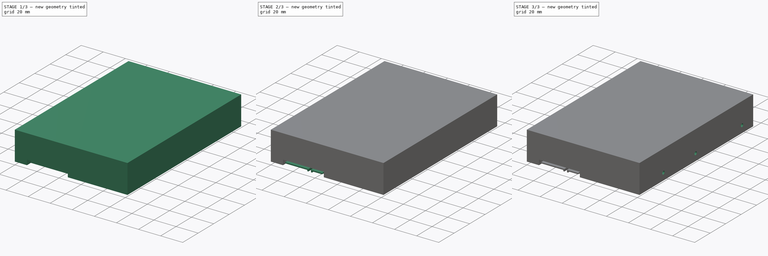
[diagram: build sequence overview — one tinted view per stage of 3, left to right]
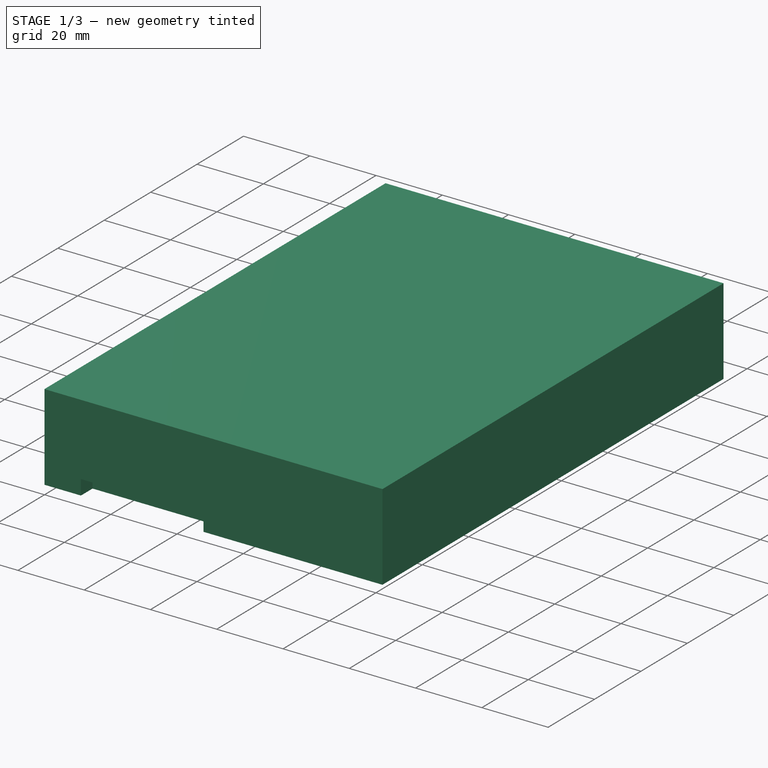
[diagram: stage 1 of 3 — iso view after this stage's code; geometry added in this stage tinted green]
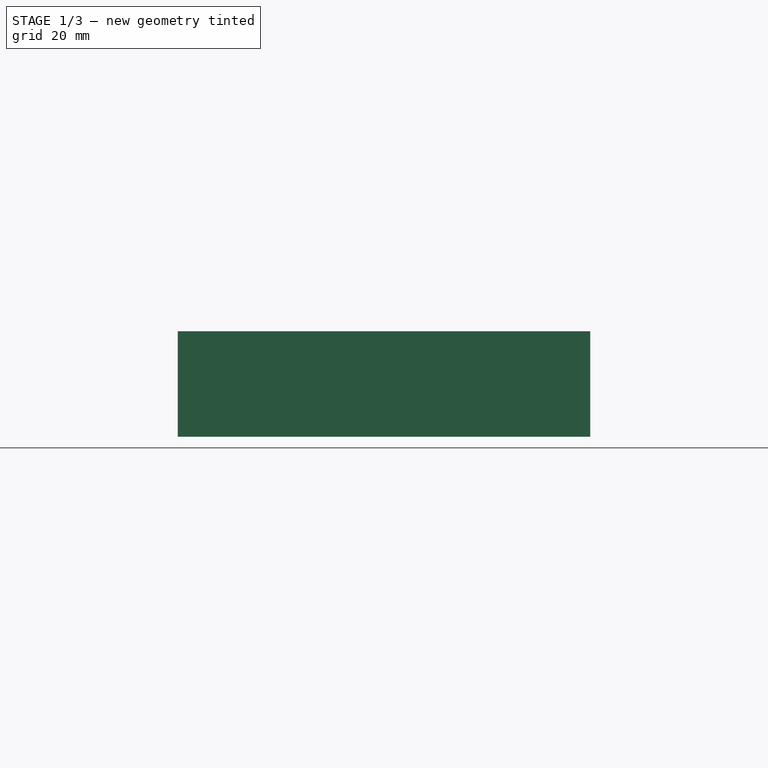
[diagram: stage 1 of 3 — front view after this stage's code; geometry added in this stage tinted green]
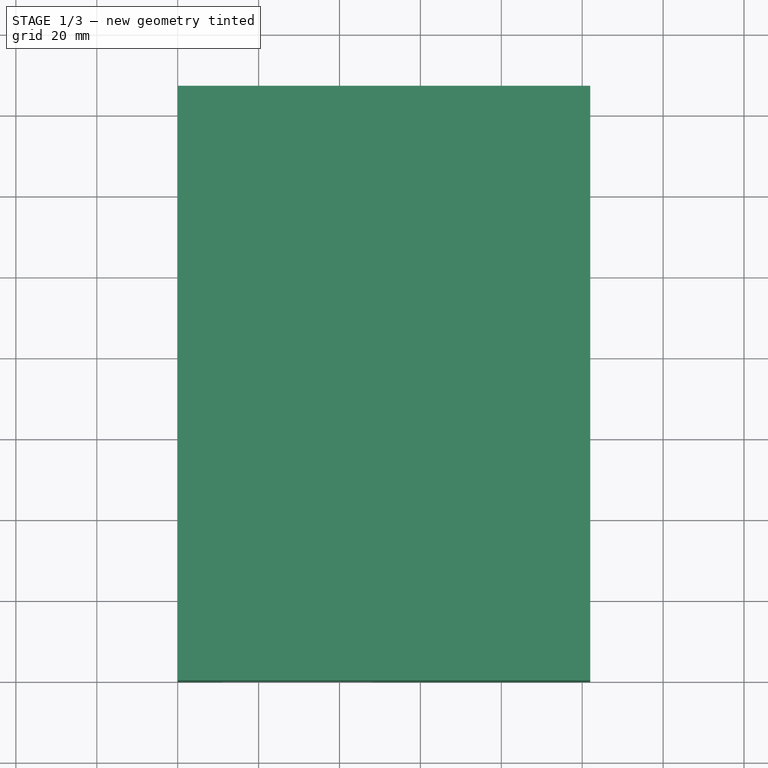
[diagram: stage 1 of 3 — top view after this stage's code; geometry added in this stage tinted green]
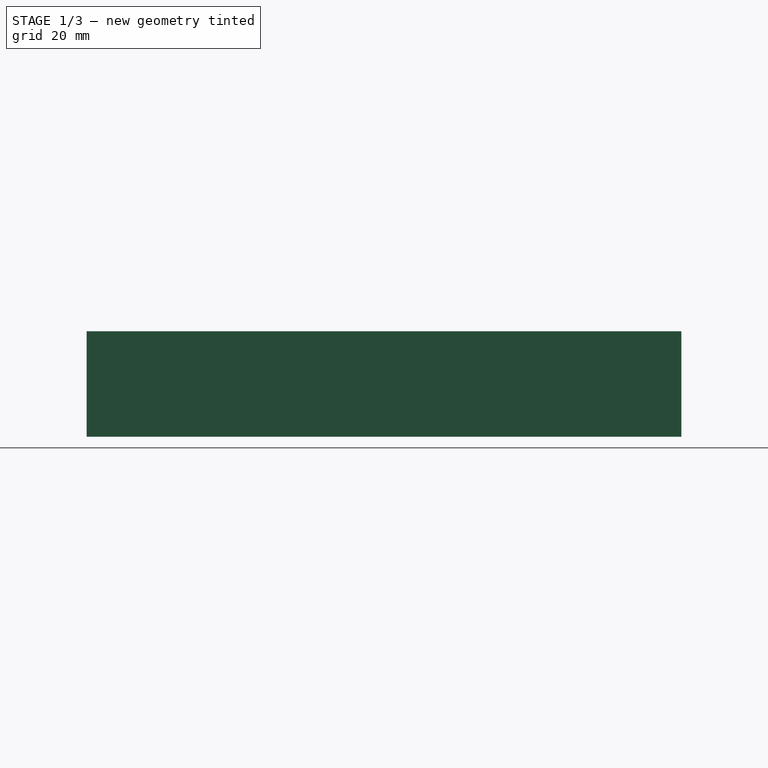
[diagram: stage 1 of 3 — right view after this stage's code; geometry added in this stage tinted green]
FCSTD DOCUMENT  (FreeCAD 0.19R22808 (Git))
Label: 3-5inch-Disk-Drive-SATA
License: All rights reserved
LicenseURL: http://en.wikipedia.org/wiki/All_rights_reserved
objects: Sketcher::SketchObject×5, PartDesign::Pocket×3, PartDesign::Pad×2, PartDesign::Body×1
note: 16 computed .brp shape members not serialized (recipe doc carries the construction recipe); baked Part::Feature solids carry a one-line shape summary decoded from their .brp

FEATURE [Sketcher::SketchObject] Sketch  label="MainSketch"
  MapMode = 5
  Support = -> [XY_Plane]
  sketch-geometry (4):
    g0: LineSegment StartX=0 StartY=147 StartZ=0 EndX=102 EndY=147 EndZ=0
    g1: LineSegment StartX=102 StartY=147 StartZ=0 EndX=102 EndY=0 EndZ=0
    g2: LineSegment StartX=102 StartY=0 StartZ=0 EndX=0 EndY=0 EndZ=0
    g3: LineSegment StartX=0 StartY=0 StartZ=0 EndX=0 EndY=147 EndZ=0
  constraints (11):
    c: Coincident(g0,g1)
    c: Coincident(g1,g2)
    c: Coincident(g2,g3)
    c: Coincident(g3,g0)
    c: Horizontal(g0)
    c: Horizontal(g2)
    c: Vertical(g1)
    c: Vertical(g3)
    c: DistanceX(g0,g0) = 102
    c: DistanceY(g3,g3) = 147
    c: Coincident(g2,g-1)
FEATURE [PartDesign::Pad] Pad  label="Main"
  Direction = (1,1,1)
  Length = 26.1
  Length2 = 100
  Profile = -> Sketch
  Type = 0
FEATURE [Sketcher::SketchObject] Sketch001  label="ConnectorsPocketSketch"
  MapMode = 5
  Placement = pos=(0,0,0) rot=(1,0,0;1.5708rad)
  Support = -> [XZ_Plane]
  sketch-geometry (4):
    g0: LineSegment StartX=11 StartY=4.5 StartZ=0 EndX=48 EndY=4.5 EndZ=0
    g1: LineSegment StartX=48 StartY=4.5 StartZ=0 EndX=48 EndY=0 EndZ=0
    g2: LineSegment StartX=48 StartY=0 StartZ=0 EndX=11 EndY=0 EndZ=0
    g3: LineSegment StartX=11 StartY=0 StartZ=0 EndX=11 EndY=4.5 EndZ=0
  constraints (12):
    c: Coincident(g0,g1)
    c: Coincident(g1,g2)
    c: Coincident(g2,g3)
    c: Coincident(g3,g0)
    c: Horizontal(g0)
    c: Horizontal(g2)
    c: Vertical(g1)
    c: Vertical(g3)
    c: DistanceY(g3,g3) = 4.5
    c: DistanceX(g0,g0) = 37
    c: PointOnObject(g2,g-1)
    c: DistanceX(g-1,g2) = 11
FEATURE [PartDesign::Pocket] Pocket  label="ConnectorsPocket"
  BaseFeature = -> Pad
  Length = 5
  Length2 = 100
  Profile = -> Sketch001
  Type = 0
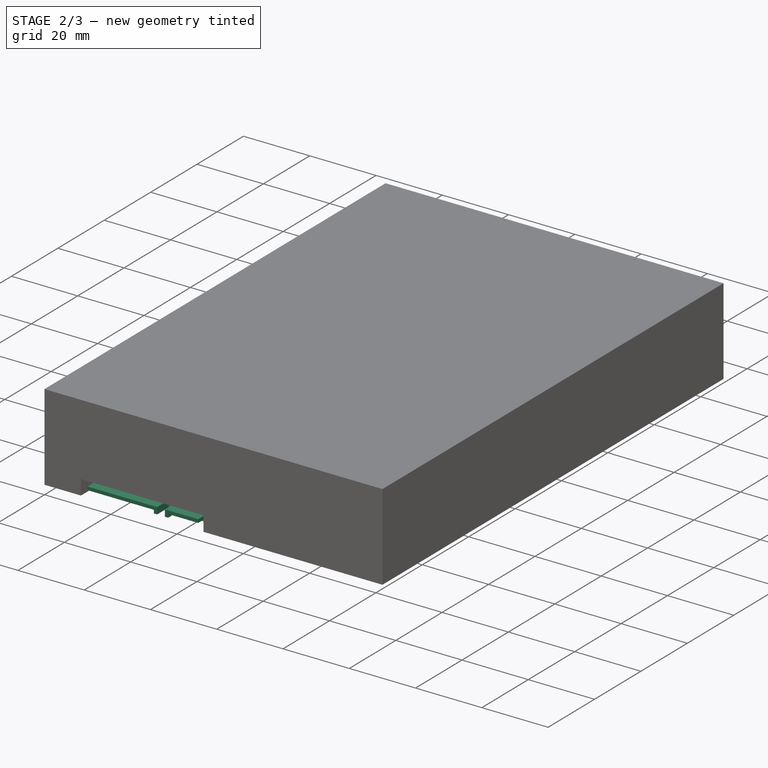
[diagram: stage 2 of 3 — iso view after this stage's code; geometry added in this stage tinted green]
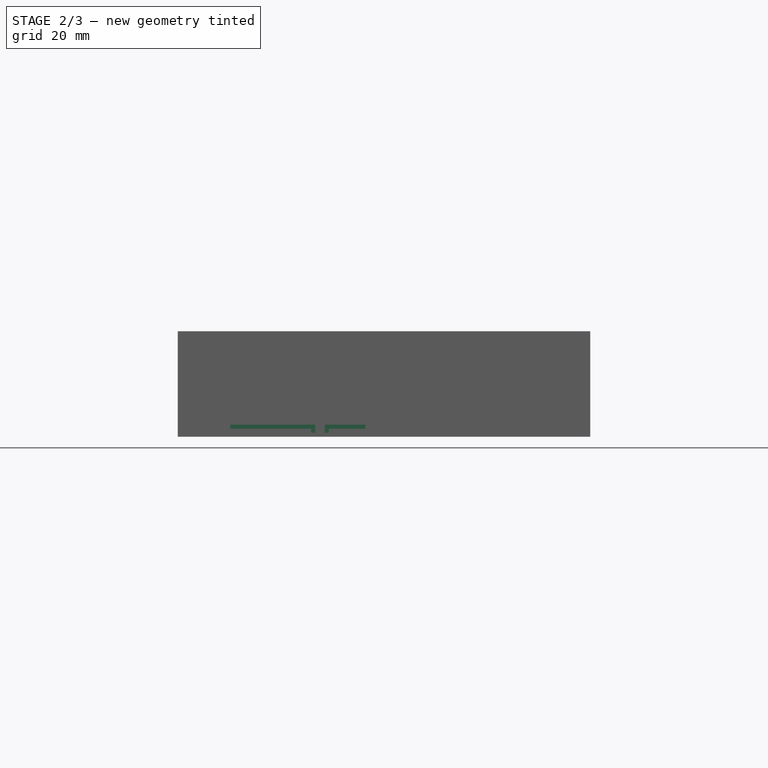
[diagram: stage 2 of 3 — front view after this stage's code; geometry added in this stage tinted green]
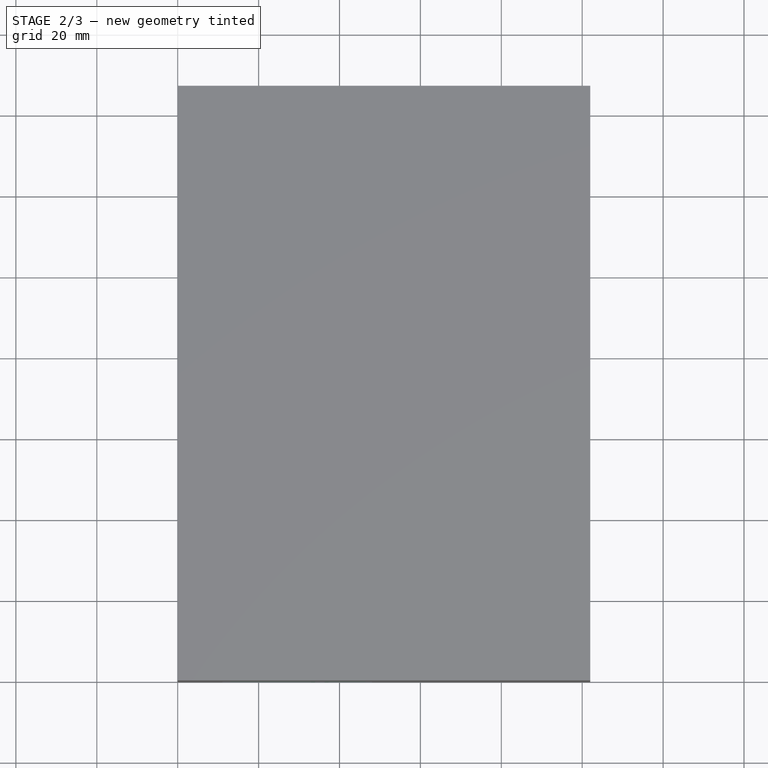
[diagram: stage 2 of 3 — top view after this stage's code; geometry added in this stage tinted green]
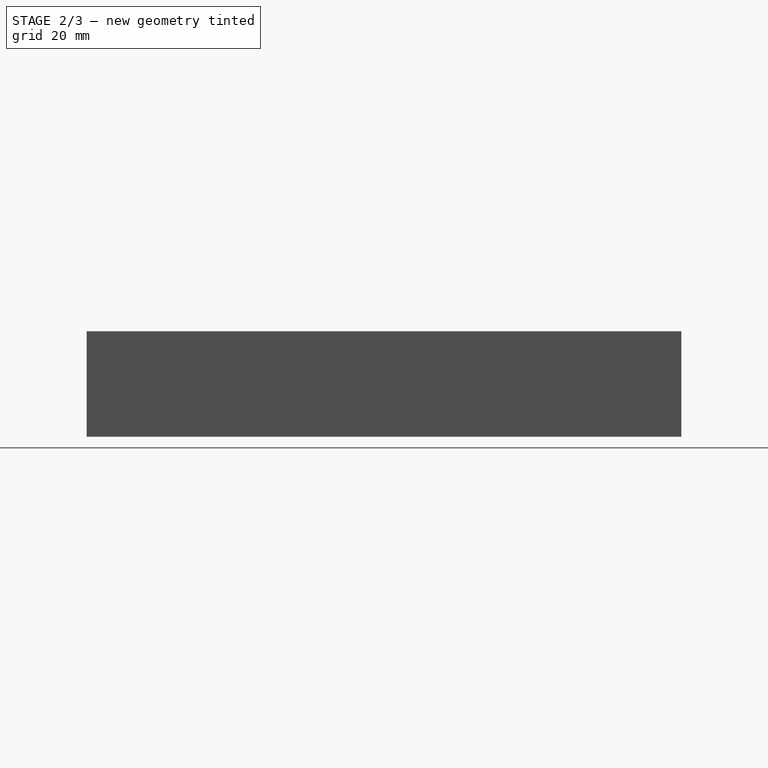
[diagram: stage 2 of 3 — right view after this stage's code; geometry added in this stage tinted green]
FEATURE [Sketcher::SketchObject] Sketch002  label="ConnectorsSketch"
  MapMode = 5
  Placement = pos=(0,0,0) rot=(1,0,0;1.5708rad)
  Support = -> [XZ_Plane]
  sketch-geometry (12):
    g0: LineSegment StartX=13 StartY=3 StartZ=0 EndX=34 EndY=3 EndZ=0
    g1: LineSegment StartX=34 StartY=3 StartZ=0 EndX=34 EndY=1 EndZ=0
    g2: LineSegment StartX=34 StartY=1 StartZ=0 EndX=33 EndY=1 EndZ=0
    g3: LineSegment StartX=33 StartY=1 StartZ=0 EndX=33 EndY=2 EndZ=0
    g4: LineSegment StartX=33 StartY=2 StartZ=0 EndX=13 EndY=2 EndZ=0
    g5: LineSegment StartX=13 StartY=3 StartZ=0 EndX=13 EndY=2 EndZ=0
    g6: LineSegment StartX=36.34 StartY=1 StartZ=0 EndX=36.34 EndY=3 EndZ=0
    g7: LineSegment StartX=36.34 StartY=3 StartZ=0 EndX=46.4 EndY=3 EndZ=0
    g8: LineSegment StartX=46.4 StartY=3 StartZ=0 EndX=46.4 EndY=2 EndZ=0
    g9: LineSegment StartX=46.4 StartY=2 StartZ=0 EndX=37.34 EndY=2 EndZ=0
    g10: LineSegment StartX=37.34 StartY=2 StartZ=0 EndX=37.34 EndY=1 EndZ=0
    g11: LineSegment StartX=37.34 StartY=1 StartZ=0 EndX=36.34 EndY=1 EndZ=0
  constraints (36):
    c: Horizontal(g0)
    c: Coincident(g1,g0)
    c: Coincident(g2,g1)
    c: Coincident(g3,g2)
    c: Coincident(g4,g3)
    c: Horizontal(g4)
    c: Coincident(g5,g0)
    c: Coincident(g5,g4)
    c: Vertical(g5)
    c: Vertical(g3)
    c: Horizontal(g2)
    c: Vertical(g1)
    c: Coincident(g7,g6)
    c: Horizontal(g7)
    c: Coincident(g8,g7)
    c: Coincident(g9,g8)
    c: Horizontal(g9)
    c: Coincident(g10,g9)
    c: Coincident(g11,g10)
    c: Coincident(g11,g6)
    c: Horizontal(g11)
    c: Vertical(g6)
    c: Vertical(g10)
    c: Vertical(g8)
    c: Horizontal(g0,g6)
    c: Horizontal(g1,g6)
    c: Equal(g2,g11)
    c: Equal(g11,g8)
    c: Equal(g8,g5)
    c: DistanceY(g5,g5) = 1
    c: DistanceY(g-1,g1) = 1
    c: DistanceX(g0,g7) = 33.4
    c: DistanceX(g0,g0) = 21
    c: DistanceX(g0,g6) = 2.34
    c: DistanceY(g-1,g9) = 2
    c: DistanceX(g-1,g4) = 13
FEATURE [PartDesign::Pad] Pad001  label="Connectors"
  BaseFeature = -> Pocket
  Direction = (1,1,1)
  Length = 5
  Length2 = 100
  Profile = -> Sketch002
  Reversed = true
  Type = 0
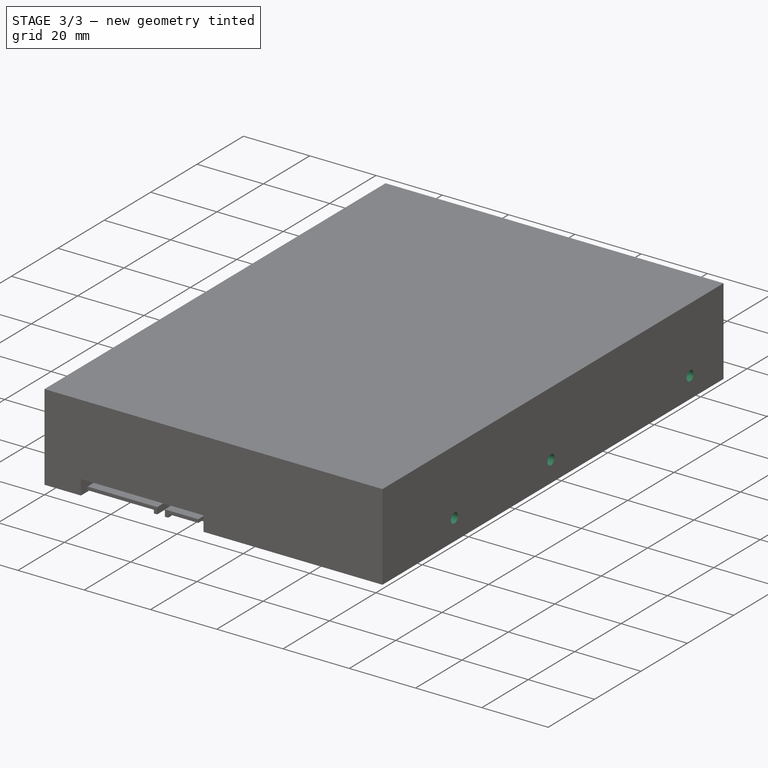
[diagram: stage 3 of 3 — iso view after this stage's code; geometry added in this stage tinted green]
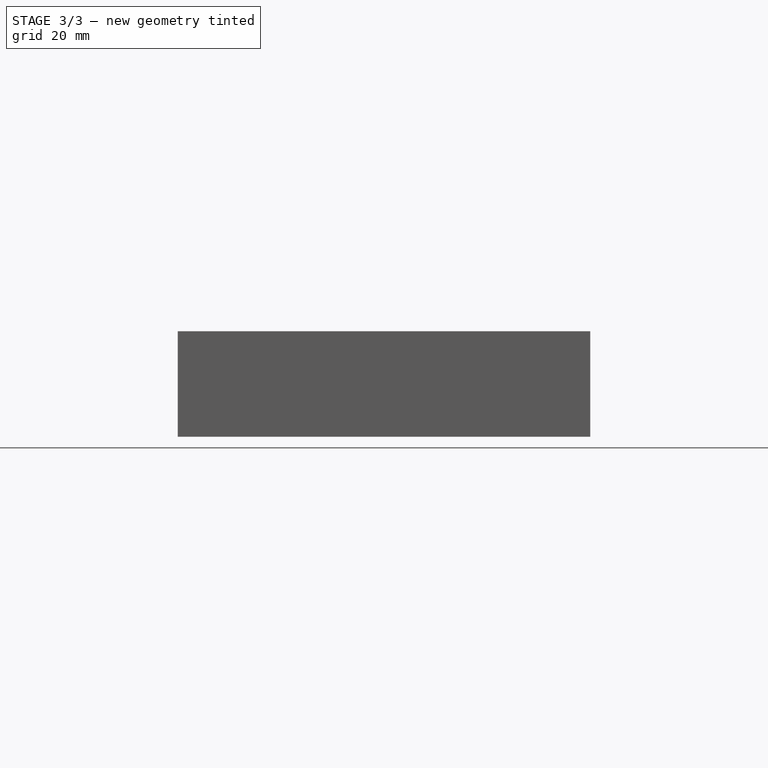
[diagram: stage 3 of 3 — front view after this stage's code; geometry added in this stage tinted green]
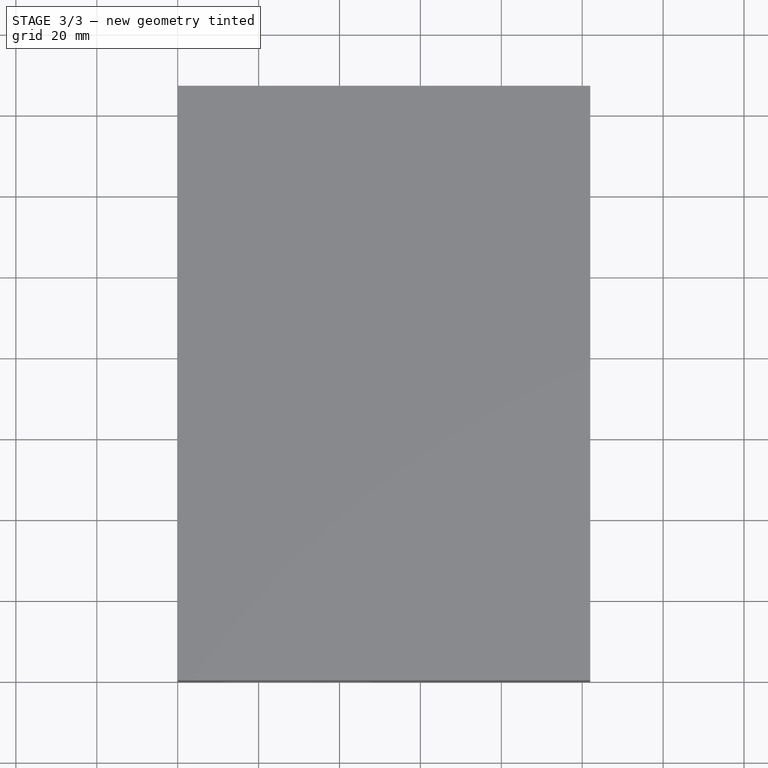
[diagram: stage 3 of 3 — top view after this stage's code; geometry added in this stage tinted green]
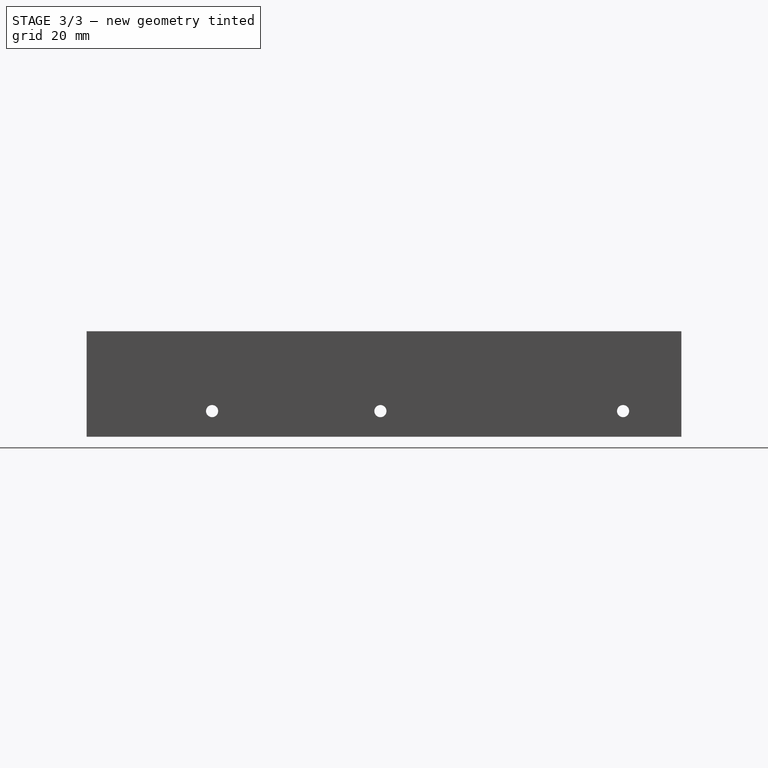
[diagram: stage 3 of 3 — right view after this stage's code; geometry added in this stage tinted green]
FEATURE [Sketcher::SketchObject] Sketch003  label="SideHolesSketch"
  MapMode = 5
  Placement = pos=(0,0,0) rot=(0.57735,0.57735,0.57735;2.0944rad)
  Support = -> [YZ_Plane]
  sketch-geometry (3):
    g0: Circle CenterX=31 CenterY=6.35 CenterZ=0 NormalX=0 NormalY=0 NormalZ=1 AngleXU=0 Radius=1.5
    g1: Circle CenterX=72.61 CenterY=6.35 CenterZ=0 NormalX=0 NormalY=0 NormalZ=1 AngleXU=0 Radius=1.5
    g2: Circle CenterX=132.6 CenterY=6.35 CenterZ=0 NormalX=0 NormalY=0 NormalZ=1 AngleXU=0 Radius=1.5
  constraints (9):
    c: Radius(g0) = 1.5
    c: Equal(g0,g1)
    c: Equal(g0,g2)
    c: Horizontal(g0,g1)
    c: Horizontal(g1,g2)
    c: DistanceY(g-1,g0) = 6.35
    c: DistanceX(g-1,g0) = 31
    c: DistanceX(g0,g1) = 41.61
    c: DistanceX(g0,g2) = 101.6
FEATURE [PartDesign::Pocket] Pocket001  label="SideHoles"
  BaseFeature = -> Pad001
  Length = 5
  Length2 = 100
  Profile = -> Sketch003
  Reversed = true
  Type = 1
FEATURE [Sketcher::SketchObject] Sketch004  label="BottomHolesSketch"
  MapMode = 5
  Support = -> [XY_Plane]
  sketch-geometry (7):
    g0: Circle CenterX=3.175 CenterY=41.28 CenterZ=0 NormalX=0 NormalY=0 NormalZ=1 AngleXU=0 Radius=1.5
    g1: Circle CenterX=98.425 CenterY=41.28 CenterZ=0 NormalX=0 NormalY=0 NormalZ=1 AngleXU=0 Radius=1.5
    g2: Circle CenterX=3.175 CenterY=85.73 CenterZ=0 NormalX=0 NormalY=0 NormalZ=1 AngleXU=0 Radius=1.5
    g3: Circle CenterX=98.425 CenterY=85.73 CenterZ=0 NormalX=0 NormalY=0 NormalZ=1 AngleXU=0 Radius=1.5
    g4: Circle CenterX=3.175 CenterY=117.48 CenterZ=0 NormalX=0 NormalY=0 NormalZ=1 AngleXU=0 Radius=1.5
    g5: Circle CenterX=98.425 CenterY=117.48 CenterZ=0 NormalX=0 NormalY=0 NormalZ=1 AngleXU=0 Radius=1.5
    g6: GeomPoint X=50.8 Y=41.28 Z=0
  constraints (19):
    c: Radius(g4) = 1.5
    c: Equal(g4,g2)
    c: Equal(g4,g0)
    c: Equal(g4,g1)
    c: Equal(g4,g3)
    c: Equal(g4,g5)
    c: Vertical(g2,g4)
    c: Vertical(g4,g0)
    c: Vertical(g1,g3)
    c: Vertical(g3,g5)
    c: Horizontal(g4,g5)
    c: Horizontal(g2,g3)
    c: Horizontal(g0,g1)
    c: Symmetric(g1,g0,g6)
    c: DistanceX(g-1,g6) = 50.8
    c: DistanceX(g0,g1) = 95.25
    c: DistanceY(g-1,g0) = 41.28
    c: DistanceY(g0,g2) = 44.45
    c: DistanceY(g0,g4) = 76.2
FEATURE [PartDesign::Pocket] Pocket002  label="BottomHoles"
  BaseFeature = -> Pocket001
  Length = 5
  Length2 = 100
  Profile = -> Sketch004
  Reversed = true
  Type = 0
FEATURE [PartDesign::Body] Body
  Group = -> [Sketch,Pad,Sketch001,Pocket,Sketch002,Pad001,Sketch003,Pocket001,Sketch004,Pocket002]
  Origin = -> Origin
  Tip = -> Pocket002
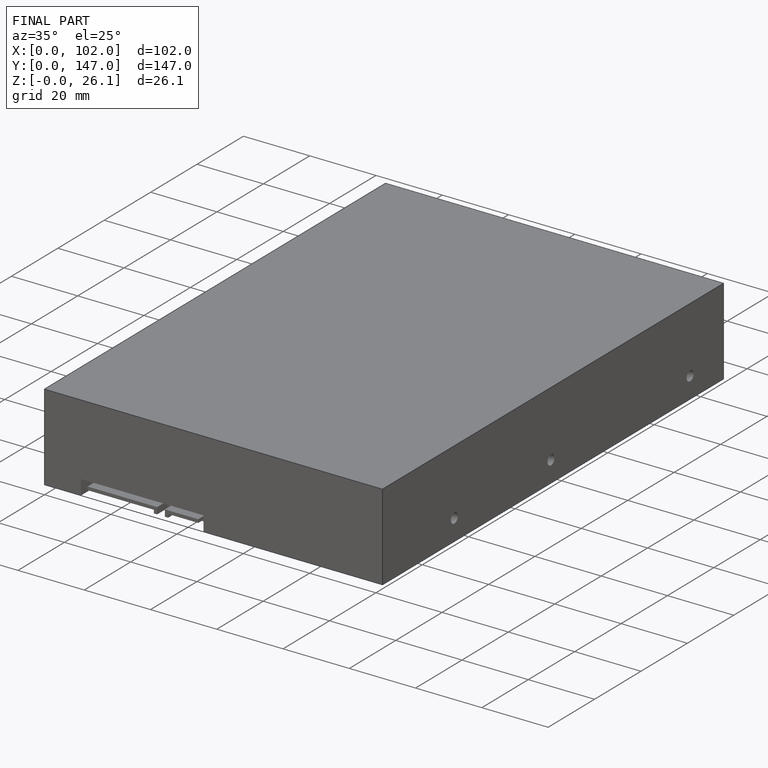
[diagram: finished part — iso view with bounding-box wireframe]
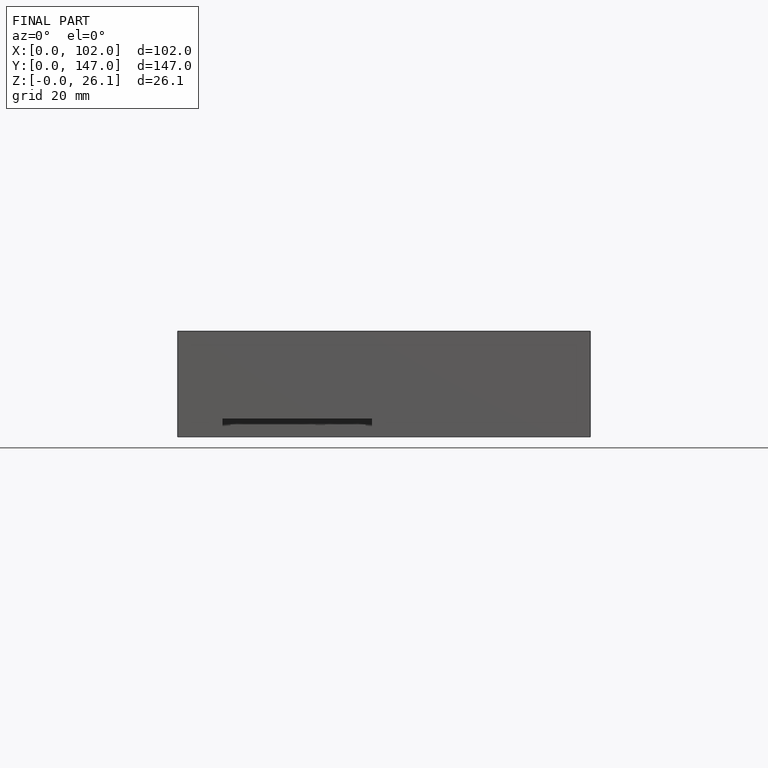
[diagram: finished part — front view with bounding-box wireframe]
